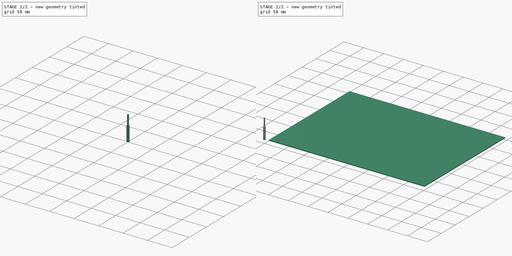
[diagram: build sequence overview — one tinted view per stage of 2, left to right]
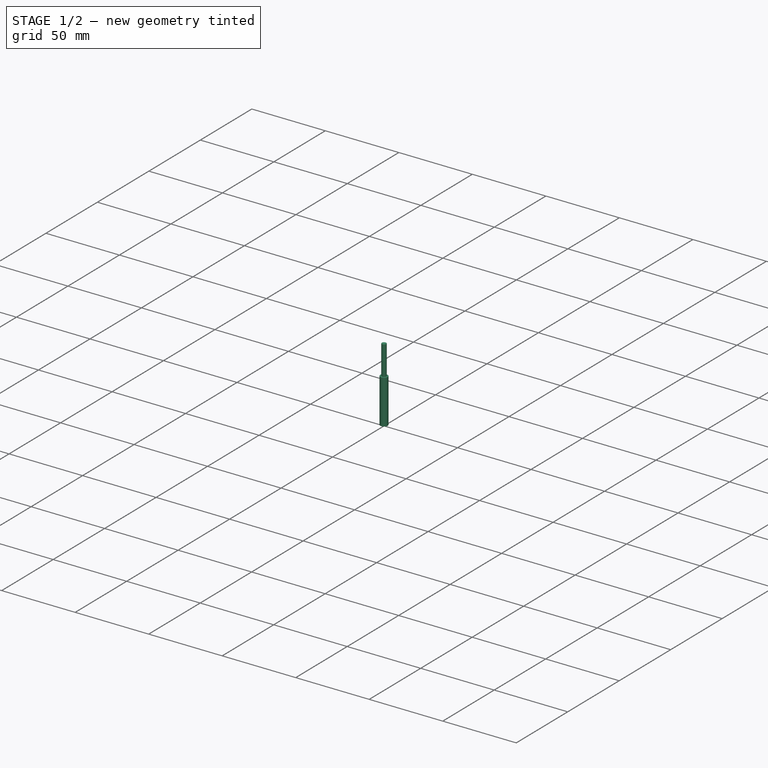
[diagram: stage 1 of 2 — iso view after this stage's code; geometry added in this stage tinted green]
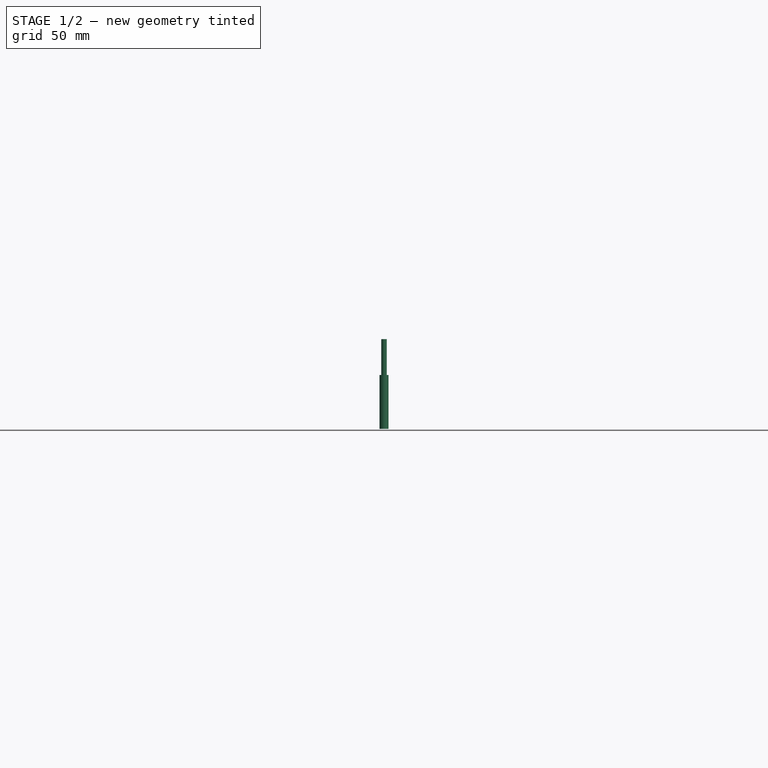
[diagram: stage 1 of 2 — front view after this stage's code; geometry added in this stage tinted green]
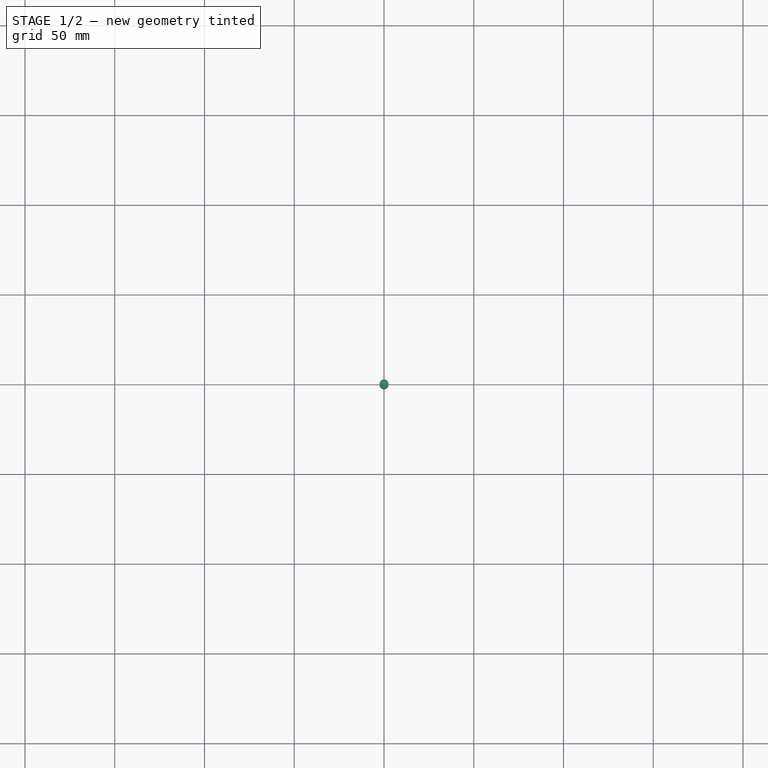
[diagram: stage 1 of 2 — top view after this stage's code; geometry added in this stage tinted green]
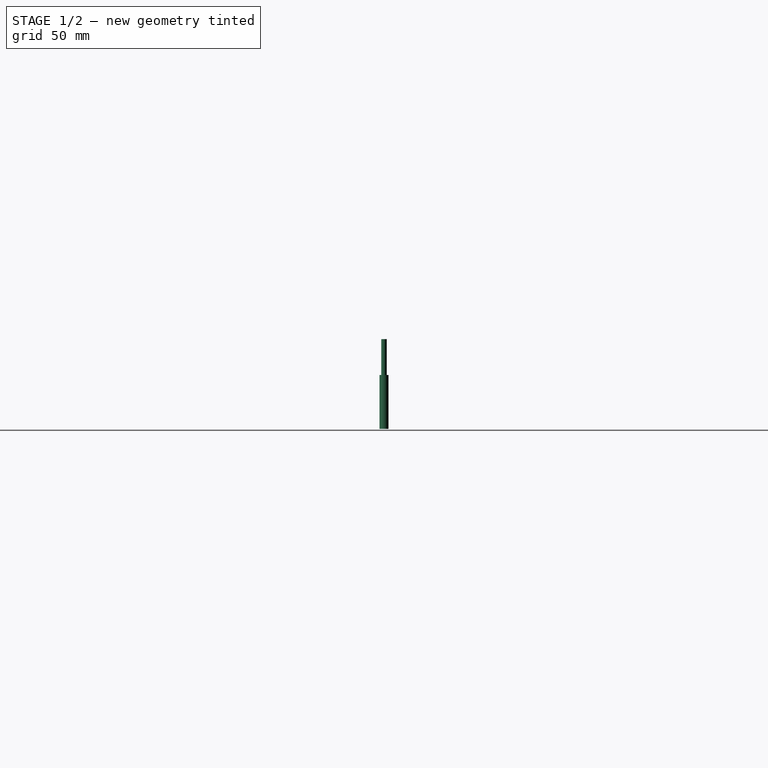
[diagram: stage 1 of 2 — right view after this stage's code; geometry added in this stage tinted green]
FCSTD DOCUMENT  (FreeCAD 1.0R39109 (Git))
Label: AirMouseGun
License: All rights reserved
LicenseURL: https://en.wikipedia.org/wiki/All_rights_reserved
objects: Sketcher::SketchObject×5, Part::Part2DObjectPython×3, App::DocumentObjectGroup×3, Path::FeaturePython×3, Part::FeaturePython×2, PartDesign::Body×1, App::FeaturePython×1
note: 16 computed .brp shape members not serialized (recipe doc carries the construction recipe); baked Part::Feature solids carry a one-line shape summary decoded from their .brp

FEATURE [Sketcher::SketchObject] Sketch  label="A3"
  ArcFitTolerance = 1e-06
  AttachmentSupport = -> [XY_Plane]
  FullyConstrained = true
  MakeInternals = false
  MapMode = 5
  sketch-geometry (6):
    g0: LineSegment StartX=0 StartY=0 StartZ=0 EndX=420 EndY=0 EndZ=0
    g1: LineSegment StartX=420 StartY=0 StartZ=0 EndX=420 EndY=297 EndZ=0
    g2: LineSegment StartX=0 StartY=297 StartZ=0 EndX=0 EndY=0 EndZ=0
    g3: LineSegment StartX=0 StartY=297 StartZ=0 EndX=210 EndY=297 EndZ=0
    g4: LineSegment StartX=210 StartY=297 StartZ=0 EndX=420 EndY=297 EndZ=0
    g5: LineSegment StartX=210 StartY=297 StartZ=0 EndX=210 EndY=0 EndZ=0
  constraints (16):
    c: Coincident(g0,g1)
    c: Coincident(g2,g0)
    c: Horizontal(g0)
    c: Vertical(g1)
    c: Vertical(g2)
    c: Coincident(g0,g-1)
    c: DistanceX(g2,g1) = 420
    c: DistanceY(g2,g2) = 297
    c: Coincident(g3,g2)
    c: Horizontal(g3)
    c: Coincident(g4,g3)
    c: Coincident(g4,g1)
    c: Horizontal(g4)
    c: Equal(g4,g3)
    c: Coincident(g5,g3)
    c: Symmetric(g0,g0,g5)
FEATURE [Sketcher::SketchObject] Sketch002  label="CUT01-MouseHolder"
  ArcFitTolerance = 1e-06
  AttachmentSupport = -> [XY_Plane]
  FullyConstrained = false
  MakeInternals = false
  MapMode = 5
  sketch-geometry (26):
    g0: LineSegment StartX=9.99999 StartY=273.262 StartZ=0 EndX=9.99999 EndY=58.2617 EndZ=0
    g1: LineSegment StartX=90 StartY=273.262 StartZ=0 EndX=9.99999 EndY=273.262 EndZ=0
    g2: LineSegment StartX=22.5 StartY=253.262 StartZ=0 EndX=22.5 EndY=78.2617 EndZ=0
    g3: LineSegment StartX=77.5 StartY=253.262 StartZ=0 EndX=22.5 EndY=253.262 EndZ=0
    g4: LineSegment StartX=170 StartY=58.2617 StartZ=0 EndX=170 EndY=273.262 EndZ=0
    g5: LineSegment StartX=170 StartY=273.262 StartZ=0 EndX=90 EndY=273.262 EndZ=0
    g6: LineSegment StartX=152.5 StartY=81.7617 StartZ=0 EndX=152.5 EndY=249.762 EndZ=0
    g7: LineSegment StartX=152.5 StartY=249.762 StartZ=0 EndX=107.5 EndY=249.762 EndZ=0
    g8: LineSegment StartX=90 StartY=58.2617 StartZ=0 EndX=90 EndY=165.762 EndZ=0
    g9: LineSegment StartX=90 StartY=165.762 StartZ=0 EndX=90 EndY=273.262 EndZ=0
    g10: LineSegment StartX=9.99999 StartY=58.2617 StartZ=0 EndX=50 EndY=58.2617 EndZ=0
    g11: LineSegment StartX=50 StartY=58.2617 StartZ=0 EndX=90 EndY=58.2617 EndZ=0
    g12: LineSegment StartX=90 StartY=58.2617 StartZ=0 EndX=130 EndY=58.2617 EndZ=0
    g13: LineSegment StartX=130 StartY=58.2617 StartZ=0 EndX=170 EndY=58.2617 EndZ=0
    g14: LineSegment StartX=22.5 StartY=78.2617 StartZ=0 EndX=50 EndY=78.2617 EndZ=0
    g15: LineSegment StartX=50 StartY=78.2617 StartZ=0 EndX=77.5 EndY=78.2617 EndZ=0
    g16: LineSegment StartX=107.5 StartY=81.7617 StartZ=0 EndX=130 EndY=81.7617 EndZ=0
    g17: LineSegment StartX=130 StartY=81.7617 StartZ=0 EndX=152.5 EndY=81.7617 EndZ=0
    g18: LineSegment [constr] StartX=50 StartY=58.2617 StartZ=0 EndX=50 EndY=78.2617 EndZ=0
    g19: LineSegment [constr] StartX=130 StartY=58.2617 StartZ=0 EndX=130 EndY=81.7617 EndZ=0
    g20: LineSegment StartX=107.5 StartY=165.762 StartZ=0 EndX=107.5 EndY=249.762 EndZ=0
    g21: LineSegment StartX=77.5 StartY=78.2617 StartZ=0 EndX=77.5 EndY=165.762 EndZ=0
    g22: LineSegment StartX=77.5 StartY=165.762 StartZ=0 EndX=77.5 EndY=253.262 EndZ=0
    g23: LineSegment [constr] StartX=77.5 StartY=165.762 StartZ=0 EndX=90 EndY=165.762 EndZ=0
    g24: LineSegment StartX=107.5 StartY=165.762 StartZ=0 EndX=107.5 EndY=81.7617 EndZ=0
    g25: LineSegment [constr] StartX=90 StartY=165.762 StartZ=0 EndX=107.5 EndY=165.762 EndZ=0
  constraints (71):
    c: Coincident(g1,g0)
    c: Vertical(g0)
    c: Horizontal(g1)
    c: DistanceX(g1,g1) = 80
    c: Coincident(g3,g2)
    c: Vertical(g2)
    c: Horizontal(g3)
    c: Coincident(g4,g5)
    c: Vertical(g4)
    c: Horizontal(g5)
    c: Equal(g5,g1)
    c: Coincident(g6,g7)
    c: Vertical(g6)
    c: Horizontal(g7)
    c: Vertical(g8)
    c: Coincident(g9,g8)
    c: Coincident(g9,g1)
    c: Vertical(g9)
    c: Equal(g9,g8)
    c: DistanceY(g0,g0) = 215
    c: Coincident(g1,g5)
    c: DistanceY(g2,g2) = 175
    c: DistanceX(g2,g15) = 55
    c: DistanceX(g3,g1) = 12.5
    c: Coincident(g10,g0)
    c: Horizontal(g10)
    c: Coincident(g11,g10)
    c: Coincident(g11,g8)
    c: Horizontal(g11)
    c: Coincident(g12,g8)
    c: Horizontal(g12)
    c: Coincident(g13,g12)
    c: Coincident(g13,g4)
    c: Horizontal(g13)
    c: Equal(g13,g12)
    c: Equal(g11,g10)
    c: Coincident(g14,g2)
    c: Horizontal(g14)
    c: Coincident(g15,g14)
    c: Horizontal(g15)
    c: Horizontal(g16)
    c: Coincident(g17,g16)
    c: Coincident(g17,g6)
    c: Horizontal(g17)
    c: Equal(g17,g16)
    c: Equal(g15,g14)
    c: Coincident(g18,g10)
    c: Coincident(g18,g14)
    c: Coincident(g19,g12)
    c: Coincident(g19,g16)
    c: Vertical(g19)
    c: Coincident(g20,g7)
    c: Vertical(g20)
    c: Coincident(g21,g15)
    c: Vertical(g21)
    c: Coincident(g22,g21)
    c: Coincident(g22,g3)
    c: Vertical(g22)
    c: Coincident(g23,g21)
    c: Coincident(g23,g8)
    c: Horizontal(g23)
    c: Coincident(g24,g20)
    c: Coincident(g24,g16)
    c: Vertical(g24)
    c: Coincident(g25,g8)
    c: Coincident(g25,g20)
    c: Horizontal(g25)
    c: DistanceY(g6,g6) = 168
    c: Equal(g24,g20)
    c: Equal(g21,g22)
    c: DistanceX(g7,g7) = 45
FEATURE [Sketcher::SketchObject] Sketch003
  ArcFitTolerance = 1e-06
  AttachmentSupport = -> [XY_Plane]
  FullyConstrained = true
  MakeInternals = false
  MapMode = 5
FEATURE [PartDesign::Body] Body
  AllowCompound = false
  Group = -> [Sketch,Sketch003]
  Origin = -> Origin
FEATURE [Sketcher::SketchObject] Sketch004  label="CUT02-Gun"
  ArcFitTolerance = 1e-06
  ExternalGeometry = -> [Sketch002]
  FullyConstrained = false
  MakeInternals = false
  sketch-geometry (28):
    g0: LineSegment StartX=190 StartY=249.762 StartZ=0 EndX=190 EndY=81.7617 EndZ=0
    g1: LineSegment StartX=190 StartY=81.7617 StartZ=0 EndX=170 EndY=81.7617 EndZ=0
    g2: LineSegment StartX=170 StartY=81.7617 StartZ=0 EndX=170 EndY=41.7617 EndZ=0
    g3: LineSegment StartX=170 StartY=41.7617 StartZ=0 EndX=230 EndY=41.7617 EndZ=0
    g4: LineSegment StartX=230 StartY=41.7617 StartZ=0 EndX=230 EndY=101.762 EndZ=0
    g5: LineSegment StartX=230 StartY=101.762 StartZ=0 EndX=320 EndY=101.762 EndZ=0
    g6: LineSegment StartX=320 StartY=101.762 StartZ=0 EndX=320 EndY=146.762 EndZ=0
    g7: LineSegment StartX=320 StartY=146.762 StartZ=0 EndX=230 EndY=146.762 EndZ=0
    g8: LineSegment StartX=230 StartY=146.762 StartZ=0 EndX=230 EndY=289.762 EndZ=0
    g9: LineSegment StartX=230 StartY=289.762 StartZ=0 EndX=170 EndY=289.762 EndZ=0
    g10: LineSegment StartX=170 StartY=289.762 StartZ=0 EndX=170 EndY=249.762 EndZ=0
    g11: LineSegment StartX=170 StartY=249.762 StartZ=0 EndX=190 EndY=249.762 EndZ=0
    g12: LineSegment [constr] StartX=170 StartY=273.262 StartZ=0 EndX=292.028 EndY=273.262 EndZ=0
    g13: LineSegment [constr] StartX=230 StartY=146.762 StartZ=0 EndX=230 EndY=101.762 EndZ=0
    g14: LineSegment StartX=360 StartY=43.7617 StartZ=0 EndX=360 EndY=211.762 EndZ=0
    g15: LineSegment StartX=360 StartY=211.762 StartZ=0 EndX=380 EndY=211.762 EndZ=0
    g16: LineSegment StartX=380 StartY=251.762 StartZ=0 EndX=320 EndY=251.762 EndZ=0
    g17: LineSegment StartX=320 StartY=251.762 StartZ=0 EndX=320 EndY=191.762 EndZ=0
    g18: LineSegment StartX=320 StartY=191.762 StartZ=0 EndX=230 EndY=191.762 EndZ=0
    g19: LineSegment StartX=230 StartY=191.762 StartZ=0 EndX=230 EndY=146.762 EndZ=0
    g20: LineSegment StartX=230 StartY=146.762 StartZ=0 EndX=320 EndY=146.762 EndZ=0
    g21: LineSegment StartX=320 StartY=146.762 StartZ=0 EndX=320 EndY=3.76175 EndZ=0
    g22: LineSegment StartX=320 StartY=3.76175 StartZ=0 EndX=380 EndY=3.76175 EndZ=0
    g23: LineSegment StartX=380 StartY=43.7617 StartZ=0 EndX=360 EndY=43.7617 EndZ=0
    g24: LineSegment [constr] StartX=466.536 StartY=3.68826 StartZ=0 EndX=341.216 EndY=3.68826 EndZ=0
    g25: LineSegment [constr] StartX=320 StartY=146.762 StartZ=0 EndX=320 EndY=191.762 EndZ=0
    g26: LineSegment StartX=380 StartY=3.76175 StartZ=0 EndX=380 EndY=43.7617 EndZ=0
    g27: LineSegment StartX=380 StartY=211.762 StartZ=0 EndX=380 EndY=251.762 EndZ=0
  constraints (78):
    c: Vertical(g0)
    c: Coincident(g1,g0)
    c: Coincident(g2,g1)
    c: Coincident(g3,g2)
    c: Coincident(g4,g3)
    c: Vertical(g4)
    c: Coincident(g5,g4)
    c: Horizontal(g5)
    c: Coincident(g6,g5)
    c: Vertical(g6)
    c: Coincident(g7,g6)
    c: Horizontal(g7)
    c: Coincident(g8,g7)
    c: Vertical(g8)
    c: Horizontal(g9)
    c: Coincident(g10,g9)
    c: Vertical(g10)
    c: Coincident(g11,g10)
    c: Coincident(g11,g0)
    c: Horizontal(g11)
    c: Horizontal(g1,g-6)
    c: Horizontal(g1)
    c: Coincident(g8,g9)
    c: Coincident(g12,g-3)
    c: Horizontal(g12)
    c: Horizontal(g-5,g10)
    c: Vertical(g2)
    c: Horizontal(g3)
    c: Vertical(g1,g10)
    c: DistanceX(g1,g1) = 20
    c: DistanceX(g9,g9) = 60
    c: Vertical(g4,g7)
    c: Coincident(g13,g7)
    c: Coincident(g13,g4)
    c: DistanceY(g6,g6) = 45
    c: DistanceX(g7,g7) = 90
    c: DistanceY(g2,g2) = 40
    c: DistanceY(g10,g10) = 40
    c: DistanceY(g4,g4) = 60
    c: Vertical(g14)
    c: Coincident(g15,g14)
    c: Coincident(g27,g15)
    c: Coincident(g16,g27)
    c: Coincident(g17,g16)
    c: Vertical(g17)
    c: Coincident(g18,g17)
    c: Horizontal(g18)
    c: Coincident(g19,g18)
    c: Vertical(g19)
    c: Coincident(g20,g19)
    c: Horizontal(g20)
    c: Coincident(g21,g20)
    c: Vertical(g21)
    c: Horizontal(g22)
    c: Coincident(g26,g22)
    c: Vertical(g26)
    c: Coincident(g23,g26)
    c: Coincident(g23,g14)
    c: Horizontal(g23)
    c: Horizontal(g15)
    c: Coincident(g21,g22)
    c: Horizontal(g24)
    c: Vertical(g27)
    c: Horizontal(g16)
    c: Coincident(g25,g20)
    c: Coincident(g25,g17)
    c: Vertical(g25)
    c: Equal(g19,g6)
    c: Equal(g7,g20)
    c: Coincident(g19,g7)
    c: Equal(g9,g22)
    c: PointOnObject(g12,g10)
    c: Equal(g9,g16)
    c: Equal(g11,g15)
    c: Equal(g2,g26)
    c: Equal(g21,g8)
    c: Equal(g17,g4)
    c: Equal(g27,g2)
FEATURE [Sketcher::SketchObject] Sketch005  label="CUT03-Trigers"
  ArcFitTolerance = 1e-06
  AttachmentSupport = -> [Sketch004]
  ExternalGeometry = -> [Sketch004,Sketch002]
  FullyConstrained = false
  MakeInternals = false
  MapMode = 2
  sketch-geometry (42):
    g0: LineSegment StartX=380 StartY=251.762 StartZ=0 EndX=380 EndY=3.76175 EndZ=0
    g1: LineSegment StartX=380 StartY=3.76175 StartZ=0 EndX=400 EndY=3.76175 EndZ=0
    g2: LineSegment StartX=400 StartY=3.76175 StartZ=0 EndX=400 EndY=251.762 EndZ=0
    g3: LineSegment StartX=400 StartY=251.762 StartZ=0 EndX=380 EndY=251.762 EndZ=0
    g4: Circle CenterX=390 CenterY=236.762 CenterZ=0 NormalX=0 NormalY=0 NormalZ=1 AngleXU=0 Radius=2
    g5: LineSegment StartX=320 StartY=251.762 StartZ=0 EndX=380 EndY=251.762 EndZ=0
    g6: LineSegment StartX=320 StartY=251.762 StartZ=0 EndX=320 EndY=291.762 EndZ=0
    g7: LineSegment StartX=320 StartY=291.762 StartZ=0 EndX=400 EndY=291.762 EndZ=0
    g8: LineSegment StartX=400 StartY=291.762 StartZ=0 EndX=400 EndY=251.762 EndZ=0
    g9: Circle CenterX=386.168 CenterY=276.762 CenterZ=0 NormalX=0 NormalY=0 NormalZ=1 AngleXU=0 Radius=2
    g10: LineSegment StartX=320 StartY=251.762 StartZ=0 EndX=240 EndY=251.762 EndZ=0
    g11: LineSegment StartX=240 StartY=251.762 StartZ=0 EndX=240 EndY=291.762 EndZ=0
    g12: LineSegment StartX=240 StartY=291.762 StartZ=0 EndX=320 EndY=291.762 EndZ=0
    g13: Circle CenterX=310 CenterY=276.762 CenterZ=0 NormalX=0 NormalY=0 NormalZ=1 AngleXU=0 Radius=2
    g14: LineSegment [constr] StartX=310 StartY=276.762 StartZ=0 EndX=386.168 EndY=276.762 EndZ=0
    g15: LineSegment [constr] StartX=360 StartY=43.7617 StartZ=0 EndX=320 EndY=43.7617 EndZ=0
    g16: LineSegment StartX=320 StartY=43.7617 StartZ=0 EndX=260 EndY=43.7617 EndZ=0
    g17: LineSegment StartX=260 StartY=43.7617 StartZ=0 EndX=260 EndY=3.76175 EndZ=0
    g18: LineSegment StartX=260 StartY=3.76175 StartZ=0 EndX=320 EndY=3.76175 EndZ=0
    g19: LineSegment StartX=260 StartY=43.7617 StartZ=0 EndX=260 EndY=83.7617 EndZ=0
    g20: LineSegment StartX=260 StartY=83.7617 StartZ=0 EndX=320 EndY=83.7617 EndZ=0
    g21: LineSegment StartX=190 StartY=81.7617 StartZ=0 EndX=190 EndY=42.2754 EndZ=0
    g22: LineSegment StartX=190 StartY=42.2754 StartZ=0 EndX=186 EndY=42.2754 EndZ=0
    g23: LineSegment StartX=186 StartY=42.2754 StartZ=0 EndX=186 EndY=81.7617 EndZ=0
    g24: LineSegment StartX=180 StartY=81.7617 StartZ=0 EndX=180 EndY=42.0928 EndZ=0
    g25: LineSegment StartX=180 StartY=42.0928 StartZ=0 EndX=176 EndY=42.0928 EndZ=0
    g26: LineSegment StartX=176 StartY=42.0928 StartZ=0 EndX=176 EndY=81.7617 EndZ=0
    g27: LineSegment StartX=190 StartY=249.762 StartZ=0 EndX=190 EndY=273.262 EndZ=0
    g28: LineSegment StartX=190 StartY=273.262 StartZ=0 EndX=186 EndY=273.262 EndZ=0
    g29: LineSegment StartX=186 StartY=273.262 StartZ=0 EndX=186 EndY=249.762 EndZ=0
    g30: LineSegment StartX=180 StartY=249.762 StartZ=0 EndX=180 EndY=273.262 EndZ=0
    g31: LineSegment StartX=180 StartY=273.262 StartZ=0 EndX=176 EndY=273.262 EndZ=0
    g32: LineSegment StartX=176 StartY=273.262 StartZ=0 EndX=176 EndY=249.762 EndZ=0
    g33: Circle CenterX=21.5161 CenterY=37.9181 CenterZ=0 NormalX=0 NormalY=0 NormalZ=1 AngleXU=0 Radius=7.5
    g34: LineSegment [constr] StartX=21.5161 StartY=37.9181 StartZ=0 EndX=153.583 EndY=37.9181 EndZ=0
    g35: Circle CenterX=36.5833 CenterY=37.9181 CenterZ=0 NormalX=0 NormalY=0 NormalZ=1 AngleXU=0 Radius=7.5
    g36: Circle CenterX=53.3086 CenterY=37.9181 CenterZ=0 NormalX=0 NormalY=0 NormalZ=1 AngleXU=0 Radius=7.5
    g37: Circle CenterX=70.0842 CenterY=37.9181 CenterZ=0 NormalX=0 NormalY=0 NormalZ=1 AngleXU=0 Radius=7.5
    g38: Circle CenterX=87.5498 CenterY=37.9181 CenterZ=0 NormalX=0 NormalY=0 NormalZ=1 AngleXU=0 Radius=7.5
    g39: Circle CenterX=107.398 CenterY=37.9181 CenterZ=0 NormalX=0 NormalY=0 NormalZ=1 AngleXU=0 Radius=7.5
    g40: Circle CenterX=124.795 CenterY=37.9181 CenterZ=0 NormalX=0 NormalY=0 NormalZ=1 AngleXU=0 Radius=7.5
    g41: Circle CenterX=141.716 CenterY=37.9181 CenterZ=0 NormalX=0 NormalY=0 NormalZ=1 AngleXU=0 Radius=7.5
  constraints (109):
    c: DistanceX(g-4,g-4) = 20
    c: Coincident(g0,g-6)
    c: Coincident(g0,g-5)
    c: Coincident(g1,g0)
    c: Horizontal(g1)
    c: Coincident(g2,g1)
    c: Vertical(g2)
    c: Coincident(g3,g2)
    c: Coincident(g3,g0)
    c: Horizontal(g3)
    c: Diameter(g4) = 4
    c: DistanceX(g4,g2) = 10
    c: DistanceX(g1,g1) = 20
    c: DistanceY(g4,g2) = 15
    c: Coincident(g5,g-6)
    c: Coincident(g5,g0)
    c: Coincident(g6,g5)
    c: Vertical(g6)
    c: Coincident(g7,g6)
    c: Horizontal(g7)
    c: Coincident(g8,g7)
    c: Coincident(g8,g2)
    c: Vertical(g8)
    c: DistanceY(g8,g8) = 40
    c: Equal(g4,g9)
    c: DistanceY(g9,g7) = 15
    c: Coincident(g10,g5)
    c: Horizontal(g10)
    c: Coincident(g11,g10)
    c: Vertical(g11)
    c: Coincident(g12,g11)
    c: Coincident(g12,g6)
    c: Horizontal(g12)
    c: Equal(g7,g12)
    c: Equal(g13,g9)
    c: Coincident(g14,g13)
    c: Coincident(g14,g9)
    c: Horizontal(g14)
    c: DistanceX(g13,g6) = 10
    c: Coincident(g15,g-7)
    c: Horizontal(g15)
    c: Coincident(g16,g15)
    c: Horizontal(g16)
    c: Coincident(g17,g16)
    c: Vertical(g17)
    c: Coincident(g18,g17)
    c: Coincident(g18,g-5)
    c: Horizontal(g18)
    c: Equal(g18,g-5)
    c: PointOnObject(g15,g-8)
    c: Coincident(g19,g16)
    c: Vertical(g19)
    c: Equal(g19,g17)
    c: Coincident(g20,g19)
    c: PointOnObject(g20,g-8)
    c: Horizontal(g20)
    c: Coincident(g21,g-15)
    c: Vertical(g21)
    c: Coincident(g22,g21)
    c: Horizontal(g22)
    c: Coincident(g23,g22)
    c: PointOnObject(g23,g-15)
    c: Vertical(g23)
    c: PointOnObject(g24,g-15)
    c: Vertical(g24)
    c: Coincident(g25,g24)
    c: Coincident(g26,g25)
    c: PointOnObject(g26,g-15)
    c: Vertical(g26)
    c: Horizontal(g25)
    c: Equal(g22,g25)
    c: DistanceX(g22,g22) = 4
    c: DistanceX(g24,g22) = 6
    c: Coincident(g27,g-16)
    c: Vertical(g27)
    c: Coincident(g28,g27)
    c: Horizontal(g28)
    c: Coincident(g29,g28)
    c: PointOnObject(g29,g-16)
    c: Vertical(g29)
    c: PointOnObject(g30,g-16)
    c: Vertical(g30)
    c: Coincident(g31,g30)
    c: Horizontal(g31)
    c: Coincident(g32,g31)
    c: PointOnObject(g32,g-16)
    c: Vertical(g32)
    c: Equal(g28,g31)
    c: Horizontal(g28,g30)
    c: DistanceX(g28,g28) = 4
    c: DistanceX(g30,g28) = 6
    c: Horizontal(g31,g-17)
    c: Diameter(g33) = 15
    c: Coincident(g34,g33)
    c: Horizontal(g34)
    c: PointOnObject(g35,g34)
    c: PointOnObject(g36,g34)
    c: PointOnObject(g37,g34)
    c: Symmetric(g34,g34,g38)
    c: PointOnObject(g39,g34)
    c: PointOnObject(g40,g34)
    c: PointOnObject(g41,g34)
    c: Equal(g35,g33)
    c: Equal(g33,g36)
    c: Equal(g36,g37)
    c: Equal(g37,g38)
    c: Equal(g38,g40)
    c: Equal(g40,g41)
    c: Equal(g39,g40)
FEATURE [App::FeaturePython] SetupSheet  # Path/CAM operation (typed FeaturePython)
  ClearanceHeightExpression = OpStockZMax+SetupSheet.ClearanceHeightOffset
  ClearanceHeightOffset = 5
  CoolantMode = 0
  CoolantModes = None | Flood | Mist
  FinalDepthExpression = OpFinalDepth
  HorizRapid = 0
  SafeHeightExpression = OpStockZMax+SetupSheet.SafeHeightOffset
  SafeHeightOffset = 3
  StartDepthExpression = OpStartDepth
  StepDownExpression = OpToolDiameter
  VertRapid = 0
FEATURE [Part::Part2DObjectPython] Clone2D  label="Model-CUT01-MouseHolder"  # Draft 2D object (typed FeaturePython)
  Fuse = false
  Objects = -> [Sketch002]
  PathResource = Model
  Scale = (1,1,1)
FEATURE [Part::Part2DObjectPython] Clone2D001  label="Model-CUT02-Gun"  # Draft 2D object (typed FeaturePython)
  Fuse = false
  Objects = -> [Sketch004]
  PathResource = Model
  Scale = (1,1,1)
FEATURE [Part::Part2DObjectPython] Clone2D002  label="Model-CUT03-Trigers"  # Draft 2D object (typed FeaturePython)
  Fuse = false
  Objects = -> [Sketch005]
  PathResource = Model
  Scale = (1,1,1)
FEATURE [App::DocumentObjectGroup] Model
  Group = -> [Clone2D,Clone2D001,Clone2D002]
FEATURE [Part::FeaturePython] ToolBit  label="Endmill"  # Path/CAM toolbit (typed FeaturePython)
  BitPropertyNames = Chipload | CuttingEdgeHeight | Diameter | Flutes | Length | Material | ShankDiameter | SpindleDirection
  BitShape = <path>
  Chipload = 0
  CuttingEdgeHeight = 30
  Diameter = 5
  Flutes = 0
  Length = 50
  Material = 0
  ShankDiameter = 3
  ShapeName = endmill
  SpindleDirection = 0
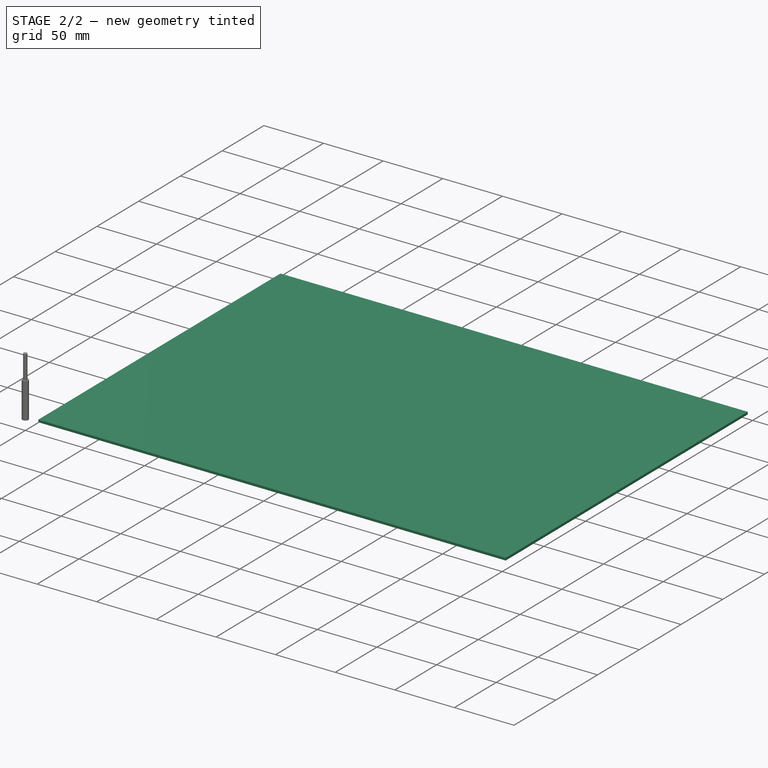
[diagram: stage 2 of 2 — iso view after this stage's code; geometry added in this stage tinted green]
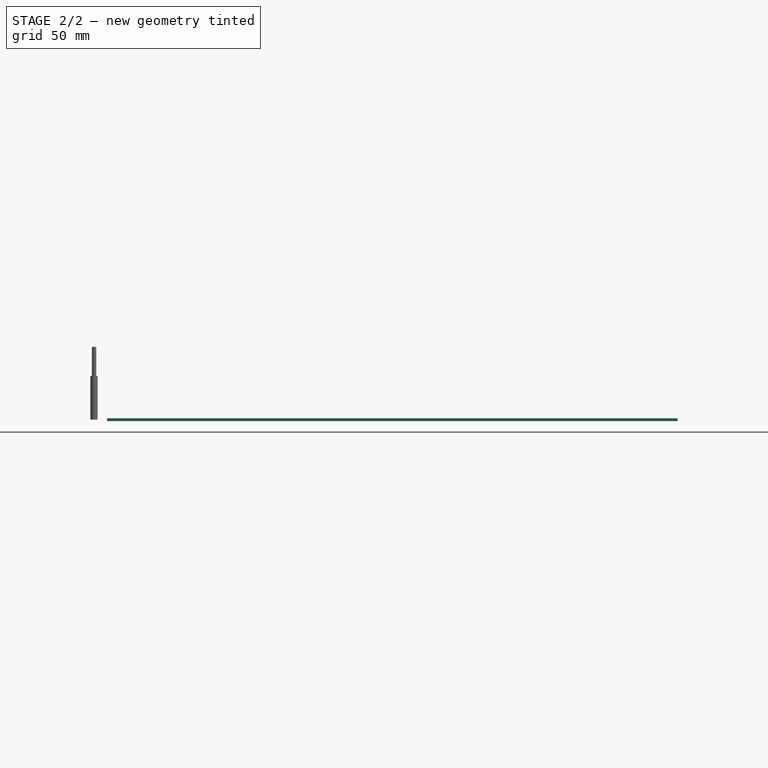
[diagram: stage 2 of 2 — front view after this stage's code; geometry added in this stage tinted green]
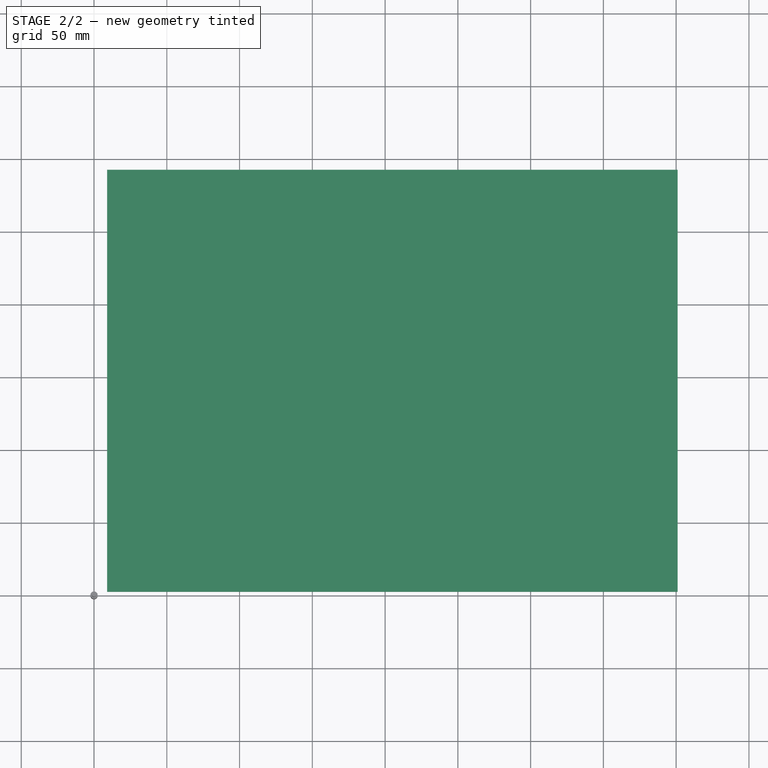
[diagram: stage 2 of 2 — top view after this stage's code; geometry added in this stage tinted green]
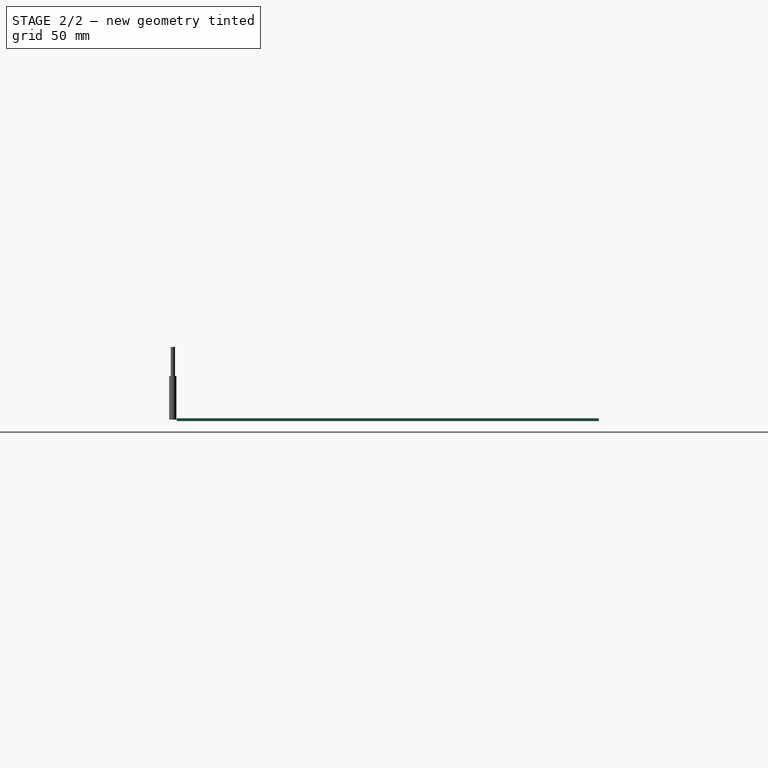
[diagram: stage 2 of 2 — right view after this stage's code; geometry added in this stage tinted green]
FEATURE [Path::FeaturePython] TC__Default_Tool  label="TC: Default Tool"  # Path/CAM operation (typed FeaturePython)
  HorizFeed = 0
  HorizRapid = 0
  SpindleDir = 0
  SpindleSpeed = 0
  Tool = -> ToolBit
  ToolNumber = 1
  VertFeed = 0
  VertRapid = 0
  expr: HorizRapid = SetupSheet.HorizRapid
  expr: VertRapid = SetupSheet.VertRapid
FEATURE [App::DocumentObjectGroup] Tools
  Group = -> [TC__Default_Tool]
FEATURE [Part::FeaturePython] Stock  # WARN: FeaturePython — macro-defined, semantics opaque (R4)
  Base = -> Model
  ExtXneg = 1
  ExtXpos = 1
  ExtYneg = 1
  ExtYpos = 1
  ExtZneg = 1
  ExtZpos = 1
  Placement = pos=(9.99999,3.76175,0) rot=(0,0,1;0rad)
  StockType = FromBase
FEATURE [Path::FeaturePython] Engrave  # Path/CAM operation (typed FeaturePython)
  Active = true
  ClearanceHeight = 6
  CoolantMode = 0
  CycleTime = Cycletime Error
  FinalDepth = -5
  OpFinalDepth = -5
  OpStartDepth = 0
  OpStockZMax = 1
  OpStockZMin = -1
  OpToolDiameter = 5
  SafeHeight = 4
  StartDepth = 0
  StartVertex = 0
  StepDown = 5
  ToolController = -> TC__Default_Tool
  expr: ClearanceHeight = OpStockZMax + SetupSheet.ClearanceHeightOffset
  expr: FinalDepth = OpFinalDepth
  expr: SafeHeight = OpStockZMax + SetupSheet.SafeHeightOffset
  expr: StartDepth = OpStartDepth
  expr: StepDown = OpToolDiameter
FEATURE [App::DocumentObjectGroup] Operations
  Group = -> [Engrave]
FEATURE [Path::FeaturePython] Job  # Path/CAM operation (typed FeaturePython)
  CycleTime = 00:00:00
  Fixtures = G54
  GeometryTolerance = 0.01
  JobType = 0
  Model = -> Model
  Operations = -> Operations
  OrderOutputBy = 0
  PostProcessor = 1
  SetupSheet = -> SetupSheet
  SplitOutput = false
  Stock = -> Stock
  Tools = -> Tools
note: 1 file-system path scrubbed to <path> (originals preserved in the JSON sidecar)
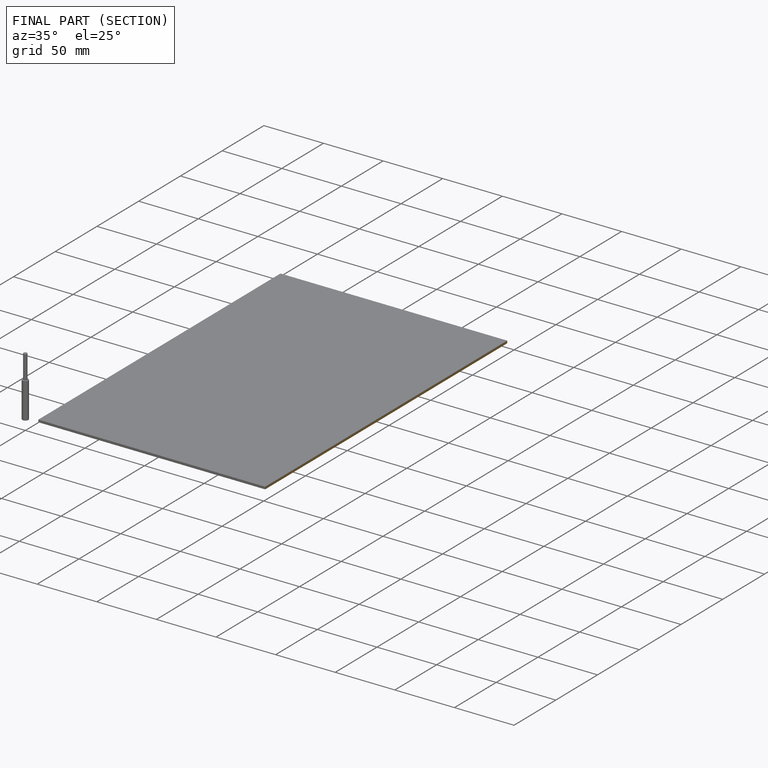
[diagram: finished part — half-section view (interior)]
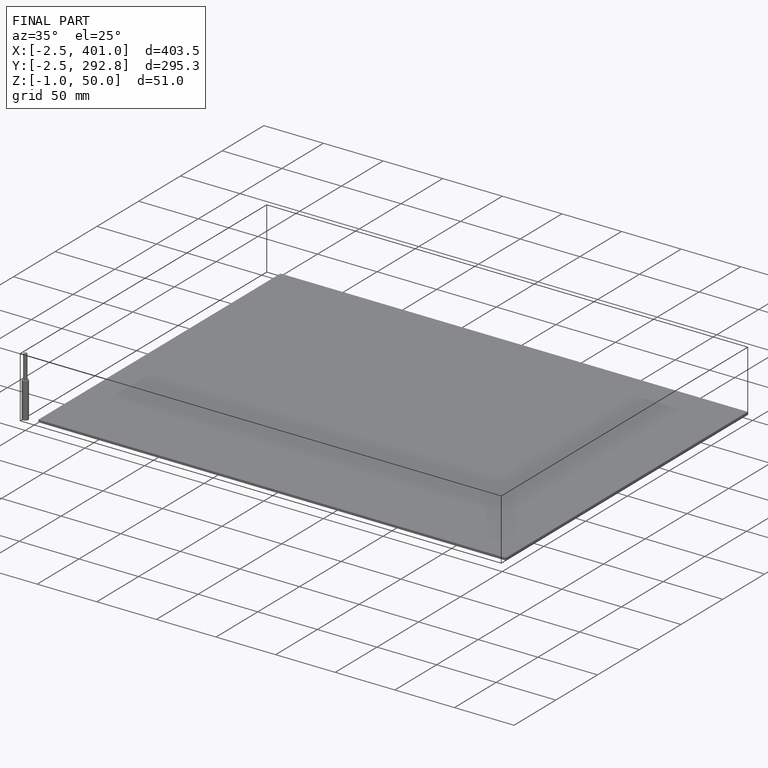
[diagram: finished part — iso view with bounding-box wireframe]
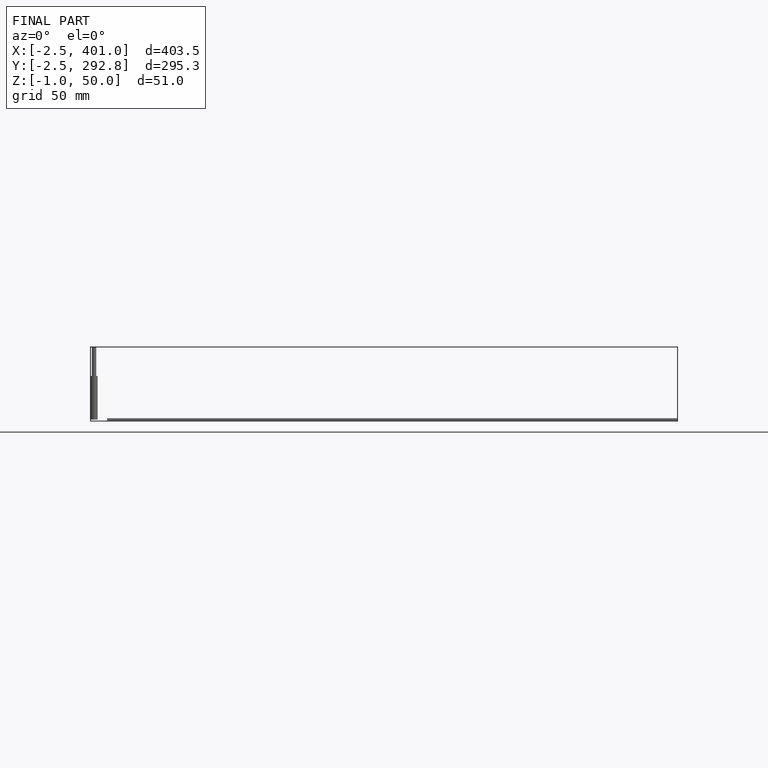
[diagram: finished part — front view with bounding-box wireframe]
